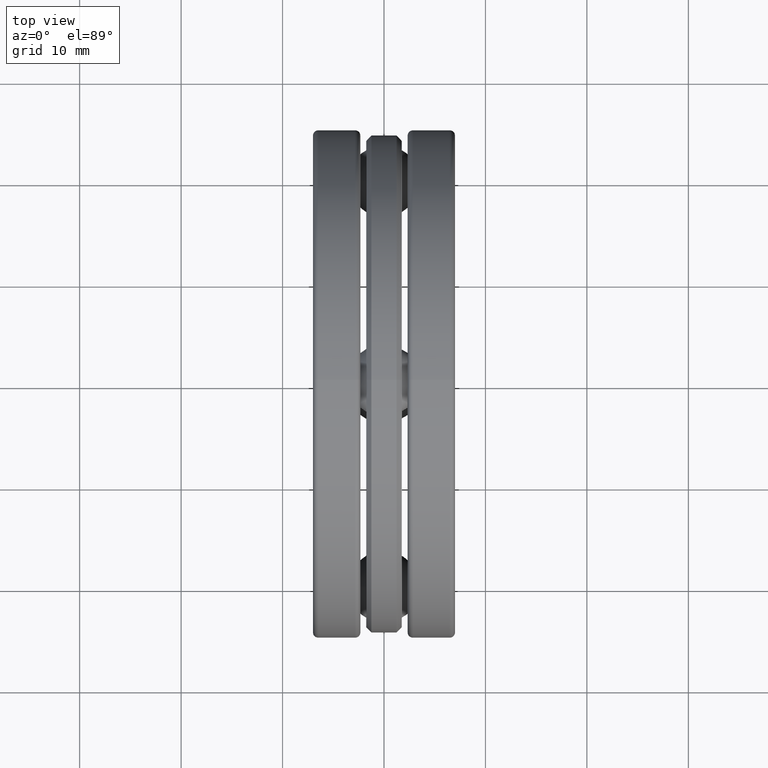
[diagram: clean part render]
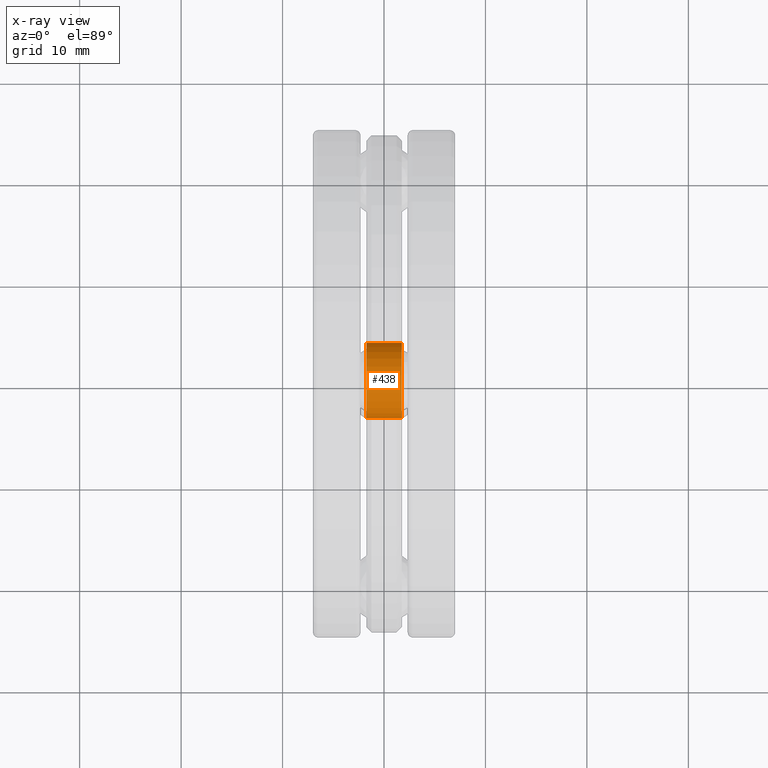
[diagram: x-ray — body ghosted, one internal face saturated and labeled with its STEP entity id]
A machine part, top view, then the same camera in x-ray: the body is ghosted and one INTERNAL B-rep face — a face not visible from any outside direction — is saturated and labeled: STEP entity #438.
In plain terms, the highlighted cylindrical surface (bore or boss wall) has radius 3.6957 mm, axis along (1, 0, 0).
Its self-contained STEP definition (entity closure, byte-faithful):
#11 = DIRECTION ( 'NONE',  ( 0.0000000000000000000, 1.000000000000000000, -1.032657317192676000E-014 ) ) ;
#22 = ORIENTED_EDGE ( 'NONE', *, *, #351, .T. ) ;
#45 = DIRECTION ( 'NONE',  ( 1.000000000000000000, 0.0000000000000000000, 0.0000000000000000000 ) ) ;
#55 = AXIS2_PLACEMENT_3D ( 'NONE', #682, #45, #389 ) ;
#81 = FACE_OUTER_BOUND ( 'NONE', #272, .T. ) ;
#143 = FACE_OUTER_BOUND ( 'NONE', #706, .T. ) ;
#165 = CARTESIAN_POINT ( 'NONE',  ( -0.06887499999999999200, 0.1455000000000083400, 0.7874999999999985300 ) ) ;
#272 = EDGE_LOOP ( 'NONE', ( #22 ) ) ;
#351 = EDGE_CURVE ( 'NONE', #808, #808, #445, .T. ) ;
#389 = DIRECTION ( 'NONE',  ( 0.0000000000000000000, 1.000000000000000000, -1.032657317192676000E-014 ) ) ;
#438 = ADVANCED_FACE ( 'NONE', ( #81, #143 ), #590, .F. ) ;
#445 = CIRCLE ( 'NONE', #55, 0.1455000000000001000 ) ;
#532 = CARTESIAN_POINT ( 'NONE',  ( -0.2755393700787402400, 8.248624663016903300E-015, 0.7874999999999999800 ) ) ;
#535 = CARTESIAN_POINT ( 'NONE',  ( -0.06887499999999999200, 8.248624663016903300E-015, 0.7874999999999999800 ) ) ;
#541 = DIRECTION ( 'NONE',  ( -1.000000000000000000, -0.0000000000000000000, -0.0000000000000000000 ) ) ;
#590 = CYLINDRICAL_SURFACE ( 'NONE', #698, 0.1455000000000001000 ) ;
#608 = ORIENTED_EDGE ( 'NONE', *, *, #744, .T. ) ;
#618 = AXIS2_PLACEMENT_3D ( 'NONE', #535, #541, #11 ) ;
#639 = DIRECTION ( 'NONE',  ( 1.000000000000000000, 0.0000000000000000000, 0.0000000000000000000 ) ) ;
#682 = CARTESIAN_POINT ( 'NONE',  ( 0.06887500000000000600, 8.248624663016903300E-015, 0.7874999999999999800 ) ) ;
#698 = AXIS2_PLACEMENT_3D ( 'NONE', #532, #639, #819 ) ;
#706 = EDGE_LOOP ( 'NONE', ( #608 ) ) ;
#739 = CIRCLE ( 'NONE', #618, 0.1455000000000001000 ) ;
#744 = EDGE_CURVE ( 'NONE', #810, #810, #739, .T. ) ;
#766 = CARTESIAN_POINT ( 'NONE',  ( 0.06887500000000000600, 0.1455000000000083400, 0.7874999999999985300 ) ) ;
#808 = VERTEX_POINT ( 'NONE', #766 ) ;
#810 = VERTEX_POINT ( 'NONE', #165 ) ;
#819 = DIRECTION ( 'NONE',  ( 0.0000000000000000000, 1.000000000000000000, -1.032657317192676000E-014 ) ) ;